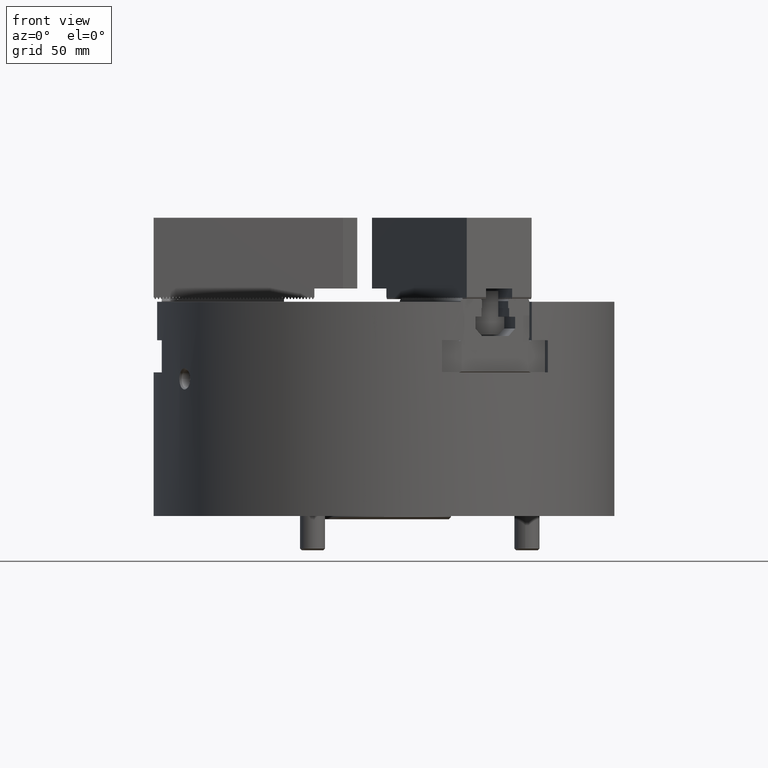
[diagram: clean part render]
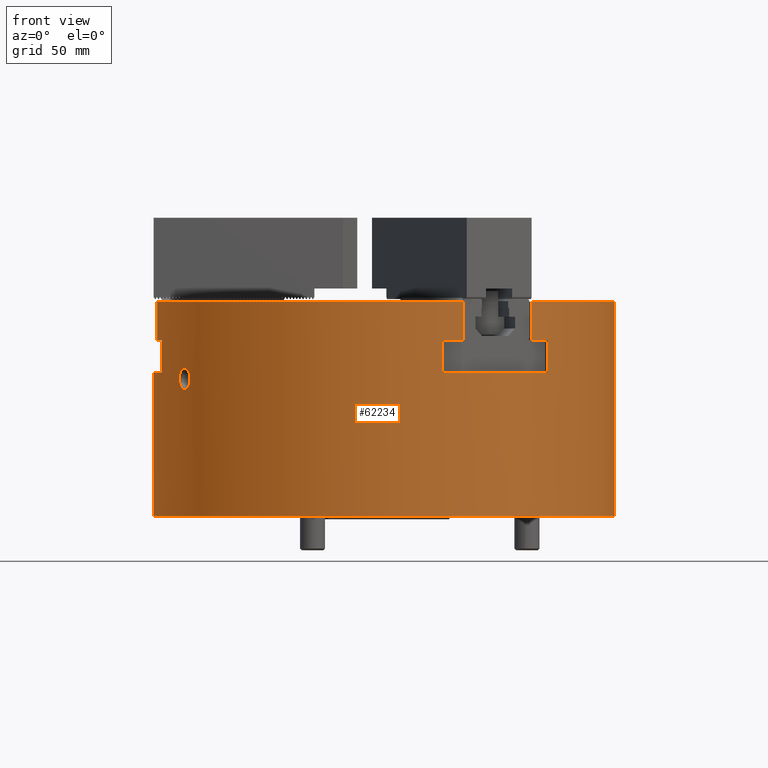
[diagram: same view with one face highlighted and labeled with its STEP entity id]
A machine part, front view. The second image highlights one B-rep face of the part: STEP entity #62234.
In plain terms, the highlighted cylindrical surface (bore or boss wall) has radius 107.5 mm, axis along (-0, 0, 1).
Its self-contained STEP definition (entity closure, byte-faithful):
#834=B_SPLINE_CURVE_WITH_KNOTS('',3,(#89561,#89562,#89563,#89564,#89565,
#89566,#89567,#89568,#89569,#89570,#89571,#89572,#89573,#89574,#89575,#89576,
#89577,#89578,#89579,#89580,#89581,#89582,#89583,#89584,#89585,#89586,#89587,
#89588,#89589,#89590,#89591,#89592,#89593,#89594,#89595),.UNSPECIFIED.,
 .T.,.F.,(1,1,1,1,1,1,1,1,1,1,1,1,1,1,1,1,1,1,1,1,1,1,1,1,1,1,1,1,1,1,1,
1,1,1,1,1,1,1,1),(-0.0953947368421053,-0.0641447368421053,-0.0328947368421053,
0.,0.0296875,0.060859375,0.09210546875,0.1233552734375,0.154605263671875,
0.185855263183594,0.21710526315918,0.248355263157959,0.279605263157898,
0.310855263157895,0.342105263157895,0.373355263157895,0.404605263157895,
0.435855263157895,0.467105263157895,0.498355263157895,0.529605263157895,
0.560855263157895,0.592105263157895,0.623355263157895,0.654605263157895,
0.685855263157895,0.717105263157895,0.748355263157895,0.779605263157895,
0.810855263157895,0.842105263157895,0.873355263157895,0.904605263157895,
0.935855263157895,0.967105263157895,1.,1.0296875,1.060859375,1.09210546875),
 .UNSPECIFIED.);
#836=B_SPLINE_CURVE_WITH_KNOTS('',3,(#89715,#89716,#89717,#89718,#89719,
#89720,#89721,#89722,#89723,#89724,#89725,#89726,#89727,#89728,#89729,#89730,
#89731,#89732,#89733,#89734,#89735,#89736,#89737,#89738,#89739,#89740,#89741,
#89742,#89743,#89744,#89745,#89746,#89747,#89748,#89749),.UNSPECIFIED.,
 .T.,.F.,(1,1,1,1,1,1,1,1,1,1,1,1,1,1,1,1,1,1,1,1,1,1,1,1,1,1,1,1,1,1,1,
1,1,1,1,1,1,1,1),(-0.0953947368421053,-0.0641447368421053,-0.0328947368421053,
0.,0.0296875,0.060859375,0.09210546875,0.1233552734375,0.154605263671875,
0.185855263183594,0.21710526315918,0.248355263157959,0.279605263157898,
0.310855263157895,0.342105263157895,0.373355263157895,0.404605263157895,
0.435855263157895,0.467105263157895,0.498355263157895,0.529605263157895,
0.560855263157895,0.592105263157895,0.623355263157895,0.654605263157895,
0.685855263157895,0.717105263157895,0.748355263157895,0.779605263157895,
0.810855263157895,0.842105263157895,0.873355263157895,0.904605263157895,
0.935855263157895,0.967105263157895,1.,1.0296875,1.060859375,1.09210546875),
 .UNSPECIFIED.);
#870=CYLINDRICAL_SURFACE('',#65228,107.5);
#1507=CIRCLE('',#64973,107.5);
#1509=CIRCLE('',#64978,107.5);
#1510=CIRCLE('',#64980,107.5);
#1513=CIRCLE('',#64988,107.5);
#1516=CIRCLE('',#64995,107.5);
#1517=CIRCLE('',#64997,107.5);
#1522=CIRCLE('',#65010,107.5);
#1556=CIRCLE('',#65174,107.5);
#1557=CIRCLE('',#65177,107.5);
#1560=CIRCLE('',#65182,107.5);
#1571=CIRCLE('',#65200,107.5);
#1591=CIRCLE('',#65227,107.5);
#1592=CIRCLE('',#65229,107.5);
#3578=ORIENTED_EDGE('',*,*,#21800,.F.);
#3579=ORIENTED_EDGE('',*,*,#21794,.F.);
#3580=ORIENTED_EDGE('',*,*,#21818,.F.);
#3581=ORIENTED_EDGE('',*,*,#21813,.F.);
#3582=ORIENTED_EDGE('',*,*,#22473,.F.);
#3583=ORIENTED_EDGE('',*,*,#22388,.F.);
#3584=ORIENTED_EDGE('',*,*,#22379,.F.);
#3585=ORIENTED_EDGE('',*,*,#22376,.F.);
#3586=ORIENTED_EDGE('',*,*,#22373,.F.);
#3587=ORIENTED_EDGE('',*,*,#21896,.F.);
#3588=ORIENTED_EDGE('',*,*,#21922,.F.);
#3589=ORIENTED_EDGE('',*,*,#21914,.F.);
#3590=ORIENTED_EDGE('',*,*,#22409,.F.);
#3591=ORIENTED_EDGE('',*,*,#21890,.F.);
#3592=ORIENTED_EDGE('',*,*,#21878,.F.);
#3593=ORIENTED_EDGE('',*,*,#22348,.F.);
#3594=ORIENTED_EDGE('',*,*,#21848,.F.);
#3595=ORIENTED_EDGE('',*,*,#21842,.F.);
#3596=ORIENTED_EDGE('',*,*,#21872,.F.);
#3597=ORIENTED_EDGE('',*,*,#21867,.F.);
#3598=ORIENTED_EDGE('',*,*,#22471,.F.);
#3599=ORIENTED_EDGE('',*,*,#21830,.F.);
#3600=ORIENTED_EDGE('',*,*,#21824,.F.);
#3601=ORIENTED_EDGE('',*,*,#22346,.F.);
#3602=ORIENTED_EDGE('',*,*,#22391,.T.);
#3603=ORIENTED_EDGE('',*,*,#22342,.T.);
#3604=ORIENTED_EDGE('',*,*,#22339,.T.);
#21794=EDGE_CURVE('',#31434,#31432,#37467,.T.);
#21800=EDGE_CURVE('',#31432,#31439,#1507,.T.);
#21813=EDGE_CURVE('',#31450,#31451,#37484,.T.);
#21818=EDGE_CURVE('',#31451,#31434,#1509,.T.);
#21824=EDGE_CURVE('',#31457,#31458,#1510,.T.);
#21830=EDGE_CURVE('',#31458,#31463,#37497,.T.);
#21842=EDGE_CURVE('',#31474,#31472,#37509,.T.);
#21848=EDGE_CURVE('',#31472,#31479,#1513,.T.);
#21867=EDGE_CURVE('',#31496,#31497,#37531,.T.);
#21872=EDGE_CURVE('',#31497,#31474,#1516,.T.);
#21878=EDGE_CURVE('',#31503,#31504,#1517,.T.);
#21890=EDGE_CURVE('',#31504,#31515,#37549,.T.);
#21896=EDGE_CURVE('',#31520,#31518,#37555,.T.);
#21914=EDGE_CURVE('',#31536,#31537,#37572,.T.);
#21922=EDGE_CURVE('',#31537,#31520,#1522,.T.);
#22339=EDGE_CURVE('',#31822,#31822,#834,.T.);
#22342=EDGE_CURVE('',#31826,#31826,#836,.T.);
#22346=EDGE_CURVE('',#31439,#31457,#37863,.T.);
#22348=EDGE_CURVE('',#31479,#31503,#37865,.T.);
#22373=EDGE_CURVE('',#31518,#31857,#1556,.T.);
#22376=EDGE_CURVE('',#31857,#31859,#37871,.T.);
#22379=EDGE_CURVE('',#31859,#31861,#1557,.T.);
#22388=EDGE_CURVE('',#31861,#31868,#37881,.T.);
#22391=EDGE_CURVE('',#31870,#31870,#1560,.T.);
#22409=EDGE_CURVE('',#31515,#31536,#1571,.T.);
#22471=EDGE_CURVE('',#31463,#31496,#1591,.T.);
#22473=EDGE_CURVE('',#31868,#31450,#1592,.T.);
#31432=VERTEX_POINT('',#86139);
#31434=VERTEX_POINT('',#86143);
#31439=VERTEX_POINT('',#86157);
#31450=VERTEX_POINT('',#86182);
#31451=VERTEX_POINT('',#86184);
#31457=VERTEX_POINT('',#86202);
#31458=VERTEX_POINT('',#86204);
#31463=VERTEX_POINT('',#86216);
#31472=VERTEX_POINT('',#86236);
#31474=VERTEX_POINT('',#86240);
#31479=VERTEX_POINT('',#86254);
#31496=VERTEX_POINT('',#86292);
#31497=VERTEX_POINT('',#86294);
#31503=VERTEX_POINT('',#86312);
#31504=VERTEX_POINT('',#86314);
#31515=VERTEX_POINT('',#86339);
#31518=VERTEX_POINT('',#86346);
#31520=VERTEX_POINT('',#86350);
#31536=VERTEX_POINT('',#86388);
#31537=VERTEX_POINT('',#86390);
#31822=VERTEX_POINT('',#89596);
#31826=VERTEX_POINT('',#89750);
#31857=VERTEX_POINT('',#89907);
#31859=VERTEX_POINT('',#89913);
#31861=VERTEX_POINT('',#89919);
#31868=VERTEX_POINT('',#89936);
#31870=VERTEX_POINT('',#89942);
#37467=LINE('',#86144,#45467);
#37484=LINE('',#86183,#45484);
#37497=LINE('',#86215,#45497);
#37509=LINE('',#86241,#45509);
#37531=LINE('',#86293,#45531);
#37549=LINE('',#86338,#45549);
#37555=LINE('',#86351,#45555);
#37572=LINE('',#86389,#45572);
#37863=LINE('',#89835,#45863);
#37865=LINE('',#89838,#45865);
#37871=LINE('',#89912,#45871);
#37881=LINE('',#89935,#45881);
#45467=VECTOR('',#69367,1000.);
#45484=VECTOR('',#69396,1000.);
#45497=VECTOR('',#69423,1000.);
#45509=VECTOR('',#69439,1000.);
#45531=VECTOR('',#69477,1000.);
#45549=VECTOR('',#69513,1000.);
#45555=VECTOR('',#69521,1000.);
#45572=VECTOR('',#69548,1000.);
#45863=VECTOR('',#70095,1000.);
#45865=VECTOR('',#70099,1000.);
#45871=VECTOR('',#70183,1000.);
#45881=VECTOR('',#70201,1000.);
#53725=EDGE_LOOP('',(#3578,#3579,#3580,#3581,#3582,#3583,#3584,#3585,#3586,
#3587,#3588,#3589,#3590,#3591,#3592,#3593,#3594,#3595,#3596,#3597,#3598,
#3599,#3600,#3601));
#53726=EDGE_LOOP('',(#3602));
#53727=EDGE_LOOP('',(#3603));
#53728=EDGE_LOOP('',(#3604));
#56939=FACE_BOUND('',#53725,.T.);
#56940=FACE_BOUND('',#53726,.T.);
#56941=FACE_BOUND('',#53727,.T.);
#56942=FACE_BOUND('',#53728,.T.);
#62234=ADVANCED_FACE('',(#56939,#56940,#56941,#56942),#870,.T.);
#64973=AXIS2_PLACEMENT_3D('',#86156,#69378,#69379);
#64978=AXIS2_PLACEMENT_3D('',#86192,#69404,#69405);
#64980=AXIS2_PLACEMENT_3D('',#86203,#69413,#69414);
#64988=AXIS2_PLACEMENT_3D('',#86253,#69450,#69451);
#64995=AXIS2_PLACEMENT_3D('',#86302,#69485,#69486);
#64997=AXIS2_PLACEMENT_3D('',#86313,#69494,#69495);
#65010=AXIS2_PLACEMENT_3D('',#86403,#69559,#69560);
#65174=AXIS2_PLACEMENT_3D('',#89906,#70177,#70178);
#65177=AXIS2_PLACEMENT_3D('',#89918,#70188,#70189);
#65182=AXIS2_PLACEMENT_3D('',#89941,#70207,#70208);
#65200=AXIS2_PLACEMENT_3D('',#89980,#70250,#70251);
#65227=AXIS2_PLACEMENT_3D('',#90099,#70346,#70347);
#65228=AXIS2_PLACEMENT_3D('',#90101,#70349,#70350);
#65229=AXIS2_PLACEMENT_3D('',#90102,#70351,#70352);
#69367=DIRECTION('',(2.34290668463255E-15,0.,-1.));
#69378=DIRECTION('',(-2.34290668463255E-15,-7.88860905221012E-31,1.));
#69379=DIRECTION('',(1.,0.,2.32372260968056E-15));
#69396=DIRECTION('',(2.34290668463255E-15,0.,-1.));
#69404=DIRECTION('',(2.34290668463255E-15,7.88860905221012E-31,-1.));
#69405=DIRECTION('',(-1.,0.,-2.35599653481501E-15));
#69413=DIRECTION('',(2.34290668463255E-15,7.88860905221012E-31,-1.));
#69414=DIRECTION('',(-1.,0.,-2.35599653481501E-15));
#69423=DIRECTION('',(-2.34290668463255E-15,0.,1.));
#69439=DIRECTION('',(2.34290668463255E-15,0.,-1.));
#69450=DIRECTION('',(-2.34290668463255E-15,7.88860905221012E-31,1.));
#69451=DIRECTION('',(1.,0.,2.32372260968056E-15));
#69477=DIRECTION('',(2.34290668463255E-15,0.,-1.));
#69485=DIRECTION('',(2.34290668463255E-15,-7.88860905221012E-31,-1.));
#69486=DIRECTION('',(-1.,0.,-2.35599653481501E-15));
#69494=DIRECTION('',(2.34290668463255E-15,-7.88860905221012E-31,-1.));
#69495=DIRECTION('',(-1.,0.,-2.35599653481501E-15));
#69513=DIRECTION('',(-2.34290668463255E-15,0.,1.));
#69521=DIRECTION('',(2.34290668463255E-15,0.,-1.));
#69548=DIRECTION('',(2.34290668463255E-15,0.,-1.));
#69559=DIRECTION('',(2.34290668463255E-15,0.,-1.));
#69560=DIRECTION('',(-1.,0.,-2.35599653481501E-15));
#70095=DIRECTION('',(-2.34290668463255E-15,0.,1.));
#70099=DIRECTION('',(-2.34290668463255E-15,0.,1.));
#70177=DIRECTION('',(-2.34290668463255E-15,0.,1.));
#70178=DIRECTION('',(1.,0.,2.32372260968056E-15));
#70183=DIRECTION('',(-2.34290668463255E-15,0.,1.));
#70188=DIRECTION('',(2.34290668463255E-15,0.,-1.));
#70189=DIRECTION('',(-1.,0.,-2.35599653481501E-15));
#70201=DIRECTION('',(-2.34290668463255E-15,0.,1.));
#70207=DIRECTION('',(-2.34290668463255E-15,0.,1.));
#70208=DIRECTION('',(1.,0.,2.32372260968056E-15));
#70250=DIRECTION('',(-2.34290668463255E-15,0.,1.));
#70251=DIRECTION('',(1.,0.,2.34290668463255E-15));
#70346=DIRECTION('',(-2.34290668463255E-15,0.,1.));
#70347=DIRECTION('',(1.,0.,2.34290668463255E-15));
#70349=DIRECTION('',(-2.34290668463255E-15,0.,1.));
#70350=DIRECTION('',(1.,0.,2.34290668463255E-15));
#70351=DIRECTION('',(-2.34290668463255E-15,0.,1.));
#70352=DIRECTION('',(1.,0.,2.34290668463255E-15));
#86139=CARTESIAN_POINT('',(27.1449100715434,-104.016363410801,-32.9999999999999));
#86143=CARTESIAN_POINT('',(27.1449100715434,-104.016363410801,-17.9999999999999));
#86144=CARTESIAN_POINT('',(27.1449100715433,-104.016363410801,6.35979912603683E-14));
#86156=CARTESIAN_POINT('',(7.73159205928742E-14,0.,-33.));
#86157=CARTESIAN_POINT('',(76.5083580872563,-75.516363410801,-32.9999999999998));
#86182=CARTESIAN_POINT('',(36.9266178141563,-100.958778205797,8.25827034420212E-14));
#86183=CARTESIAN_POINT('',(36.9266178141563,-100.958778205797,8.65156197176582E-14));
#86184=CARTESIAN_POINT('',(36.9266178141563,-100.958778205797,-17.9999999999999));
#86192=CARTESIAN_POINT('',(4.21723203233859E-14,0.,-18.));
#86202=CARTESIAN_POINT('',(76.5083580872563,-75.516363410801,-17.9999999999998));
#86203=CARTESIAN_POINT('',(4.21723203233859E-14,0.,-18.));
#86204=CARTESIAN_POINT('',(68.9695577541805,-82.4587782057966,-17.9999999999998));
#86215=CARTESIAN_POINT('',(68.9695577541805,-82.4587782057966,1.6158923789842E-13));
#86216=CARTESIAN_POINT('',(68.9695577541805,-82.4587782057966,1.57656321622783E-13));
#86236=CARTESIAN_POINT('',(76.5083580872563,75.516363410801,-32.9999999999998));
#86240=CARTESIAN_POINT('',(76.5083580872563,75.5163634108011,-17.9999999999998));
#86241=CARTESIAN_POINT('',(76.5083580872562,75.5163634108011,1.79251943592894E-13));
#86253=CARTESIAN_POINT('',(7.73159205928742E-14,0.,-33.));
#86254=CARTESIAN_POINT('',(27.1449100715433,104.016363410801,-32.9999999999999));
#86292=CARTESIAN_POINT('',(68.9695577541805,82.4587782057966,1.57656321622783E-13));
#86293=CARTESIAN_POINT('',(68.9695577541805,82.4587782057966,1.6158923789842E-13));
#86294=CARTESIAN_POINT('',(68.9695577541805,82.4587782057966,-17.9999999999998));
#86302=CARTESIAN_POINT('',(4.21723203233859E-14,0.,-18.));
#86312=CARTESIAN_POINT('',(27.1449100715433,104.016363410801,-17.9999999999999));
#86313=CARTESIAN_POINT('',(4.21723203233859E-14,0.,-18.));
#86314=CARTESIAN_POINT('',(36.9266178141563,100.958778205797,-17.9999999999999));
#86338=CARTESIAN_POINT('',(36.9266178141562,100.958778205797,8.65156197176581E-14));
#86339=CARTESIAN_POINT('',(36.9266178141562,100.958778205797,8.2582703442021E-14));
#86346=CARTESIAN_POINT('',(-103.653268158799,28.5,-33.0000000000002));
#86350=CARTESIAN_POINT('',(-103.653268158799,28.5,-18.0000000000002));
#86351=CARTESIAN_POINT('',(-103.6532681588,28.5,-2.42849934853262E-13));
#86388=CARTESIAN_POINT('',(-105.896175568337,18.5,-2.52037773891715E-13));
#86389=CARTESIAN_POINT('',(-105.896175568337,18.5,-2.48104857616078E-13));
#86390=CARTESIAN_POINT('',(-105.896175568337,18.5,-18.0000000000003));
#86403=CARTESIAN_POINT('',(4.21723203233859E-14,0.,-18.));
#89561=CARTESIAN_POINT('',(-93.6030623074715,-52.8681816738144,-31.1005835140028));
#89562=CARTESIAN_POINT('',(-93.1158793623043,-53.721597273135,-30.9957456714716));
#89563=CARTESIAN_POINT('',(-92.6209886866362,-54.5701407499489,-31.0912173441721));
#89564=CARTESIAN_POINT('',(-92.145444343355,-55.3691799670305,-31.3638972407502));
#89565=CARTESIAN_POINT('',(-91.6914416214012,-56.1173681362712,-31.8139452904795));
#89566=CARTESIAN_POINT('',(-91.2852433297222,-56.7751693754664,-32.4251457589189));
#89567=CARTESIAN_POINT('',(-90.9503259818321,-57.3095874047438,-33.1785464326444));
#89568=CARTESIAN_POINT('',(-90.6975580024697,-57.7083314160486,-34.040588276097));
#89569=CARTESIAN_POINT('',(-90.5366760275833,-57.9600954825495,-34.9750796429867));
#89570=CARTESIAN_POINT('',(-90.4761932743285,-58.0543400895953,-35.9498500897338));
#89571=CARTESIAN_POINT('',(-90.5247042217515,-57.9787681734377,-36.9239608622431));
#89572=CARTESIAN_POINT('',(-90.6753587983393,-57.7431648223222,-37.8639547346331));
#89573=CARTESIAN_POINT('',(-90.9187062321913,-57.3596854913272,-38.7335809594221));
#89574=CARTESIAN_POINT('',(-91.2457384667675,-56.8385717967372,-39.5006989250537));
#89575=CARTESIAN_POINT('',(-91.6448252186921,-56.1934141820785,-40.1264887951757));
#89576=CARTESIAN_POINT('',(-92.0967982921324,-55.4500394516662,-40.5959005095238));
#89577=CARTESIAN_POINT('',(-92.57996515722,-54.6398533357074,-40.8931942256571));
#89578=CARTESIAN_POINT('',(-93.0761490245019,-53.7903951627711,-41.0041262083051));
#89579=CARTESIAN_POINT('',(-93.5633322168664,-52.9383222822185,-40.9141404194671));
#89580=CARTESIAN_POINT('',(-94.0253423570748,-52.1129948183097,-40.6362287956282));
#89581=CARTESIAN_POINT('',(-94.446037063169,-51.3461281644211,-40.1849777247679));
#89582=CARTESIAN_POINT('',(-94.8121884559216,-50.6662035816152,-39.5729564388602));
#89583=CARTESIAN_POINT('',(-95.1073983289224,-50.1092139330847,-38.8194294713881));
#89584=CARTESIAN_POINT('',(-95.3262419839216,-49.6911066329695,-37.9579557391475));
#89585=CARTESIAN_POINT('',(-95.4636993506585,-49.4261509804927,-37.0239992709953));
#89586=CARTESIAN_POINT('',(-95.5146954699583,-49.3273847328334,-36.049046621157));
#89587=CARTESIAN_POINT('',(-95.4728985362287,-49.4083540363703,-35.0740896618428));
#89588=CARTESIAN_POINT('',(-95.3436408210388,-49.6576698642501,-34.1333915034132));
#89589=CARTESIAN_POINT('',(-95.1327892194982,-50.0609370204706,-33.2631610224543));
#89590=CARTESIAN_POINT('',(-94.8446423035398,-50.6053553604784,-32.4955086746903));
#89591=CARTESIAN_POINT('',(-94.4858570151831,-51.2727547644808,-31.8698757580668));
#89592=CARTESIAN_POINT('',(-94.0695993554154,-52.0330233972204,-31.4016990765699));
#89593=CARTESIAN_POINT('',(-93.6030623074715,-52.8681816738144,-31.1005835140028));
#89594=CARTESIAN_POINT('',(-93.1158793623043,-53.721597273135,-30.9957456714716));
#89595=CARTESIAN_POINT('',(-92.6209886866362,-54.5701407499489,-31.0912173441721));
#89596=CARTESIAN_POINT('',(-93.0977309068272,-53.7499999999998,-31.0290875300053));
#89715=CARTESIAN_POINT('',(93.6030623074952,52.8681816737731,-31.1005835140051));
#89716=CARTESIAN_POINT('',(93.1158793622962,53.7215972731494,-30.9957456714698));
#89717=CARTESIAN_POINT('',(92.6209886866468,54.5701407499309,-31.0912173441746));
#89718=CARTESIAN_POINT('',(92.1454443433628,55.3691799670178,-31.3638972407546));
#89719=CARTESIAN_POINT('',(91.6914416214001,56.1173681362732,-31.8139452904831));
#89720=CARTESIAN_POINT('',(91.2852433297327,56.7751693754494,-32.4251457589098));
#89721=CARTESIAN_POINT('',(90.9503259818585,57.3095874047024,-33.1785464325843));
#89722=CARTESIAN_POINT('',(90.6975580024783,57.7083314160354,-34.0405882760424));
#89723=CARTESIAN_POINT('',(90.5366760275896,57.96009548254,-34.9750796429489));
#89724=CARTESIAN_POINT('',(90.4761932743283,58.0543400895958,-35.9498500897238));
#89725=CARTESIAN_POINT('',(90.5247042217486,57.9787681734424,-36.9239608623064));
#89726=CARTESIAN_POINT('',(90.6753587983458,57.7431648223123,-37.8639547346618));
#89727=CARTESIAN_POINT('',(90.9187062321915,57.3596854913272,-38.7335809594054));
#89728=CARTESIAN_POINT('',(91.2457384667641,56.838571796743,-39.5006989250471));
#89729=CARTESIAN_POINT('',(91.6448252186915,56.1934141820801,-40.1264887951859));
#89730=CARTESIAN_POINT('',(92.0967982921577,55.4500394516248,-40.5959005095381));
#89731=CARTESIAN_POINT('',(92.5799651572474,54.6398533356611,-40.8931942256565));
#89732=CARTESIAN_POINT('',(93.076149024503,53.7903951627691,-41.0041262083022));
#89733=CARTESIAN_POINT('',(93.563332216843,52.9383222822602,-40.9141404194767));
#89734=CARTESIAN_POINT('',(94.0253423570617,52.1129948183338,-40.6362287956529));
#89735=CARTESIAN_POINT('',(94.4460370631496,51.3461281644568,-40.1849777247953));
#89736=CARTESIAN_POINT('',(94.8121884559012,50.6662035816541,-39.5729564388935));
#89737=CARTESIAN_POINT('',(95.1073983289534,50.1092139330264,-38.8194294713454));
#89738=CARTESIAN_POINT('',(95.3262419839513,49.6911066329126,-37.9579557390819));
#89739=CARTESIAN_POINT('',(95.4636993506705,49.4261509804697,-37.0239992710045));
#89740=CARTESIAN_POINT('',(95.5146954699587,49.327384732833,-36.0490466211492));
#89741=CARTESIAN_POINT('',(95.4728985362222,49.4083540363832,-35.0740896617953));
#89742=CARTESIAN_POINT('',(95.3436408210331,49.6576698642613,-34.1333915033785));
#89743=CARTESIAN_POINT('',(95.1327892195009,50.0609370204657,-33.2631610224619));
#89744=CARTESIAN_POINT('',(94.8446423035588,50.6053553604429,-32.4955086747446));
#89745=CARTESIAN_POINT('',(94.4858570152033,51.2727547644437,-31.8698757580989));
#89746=CARTESIAN_POINT('',(94.0695993554376,52.0330233971805,-31.4016990765955));
#89747=CARTESIAN_POINT('',(93.6030623074952,52.8681816737731,-31.1005835140051));
#89748=CARTESIAN_POINT('',(93.1158793622962,53.7215972731494,-30.9957456714698));
#89749=CARTESIAN_POINT('',(92.6209886866468,54.5701407499309,-31.0912173441746));
#89750=CARTESIAN_POINT('',(93.0977309068274,53.7499999999998,-31.0290875300049));
#89835=CARTESIAN_POINT('',(76.5083580872563,-75.516363410801,1.79251943592894E-13));
#89838=CARTESIAN_POINT('',(27.1449100715432,104.016363410801,6.35979912603681E-14));
#89906=CARTESIAN_POINT('',(7.73159205928742E-14,0.,-33.));
#89907=CARTESIAN_POINT('',(-103.653268158799,-28.5,-33.0000000000002));
#89912=CARTESIAN_POINT('',(-103.6532681588,-28.5,-2.42849934853262E-13));
#89913=CARTESIAN_POINT('',(-103.653268158799,-28.5,-18.0000000000002));
#89918=CARTESIAN_POINT('',(4.21723203233859E-14,0.,-18.));
#89919=CARTESIAN_POINT('',(-105.896175568337,-18.5,-18.0000000000003));
#89935=CARTESIAN_POINT('',(-105.896175568337,-18.5,-2.48104857616078E-13));
#89936=CARTESIAN_POINT('',(-105.896175568337,-18.5,-2.52037773891715E-13));
#89941=CARTESIAN_POINT('',(2.34290668463255E-13,0.,-100.));
#89942=CARTESIAN_POINT('',(107.5,0.,-99.9999999999998));
#89980=CARTESIAN_POINT('',(9.21445583228987E-30,0.,-3.93291627563691E-15));
#90099=CARTESIAN_POINT('',(9.21445583228987E-30,0.,-3.93291627563691E-15));
#90101=CARTESIAN_POINT('',(0.,0.,0.));
#90102=CARTESIAN_POINT('',(9.21445583228987E-30,0.,-3.93291627563691E-15));